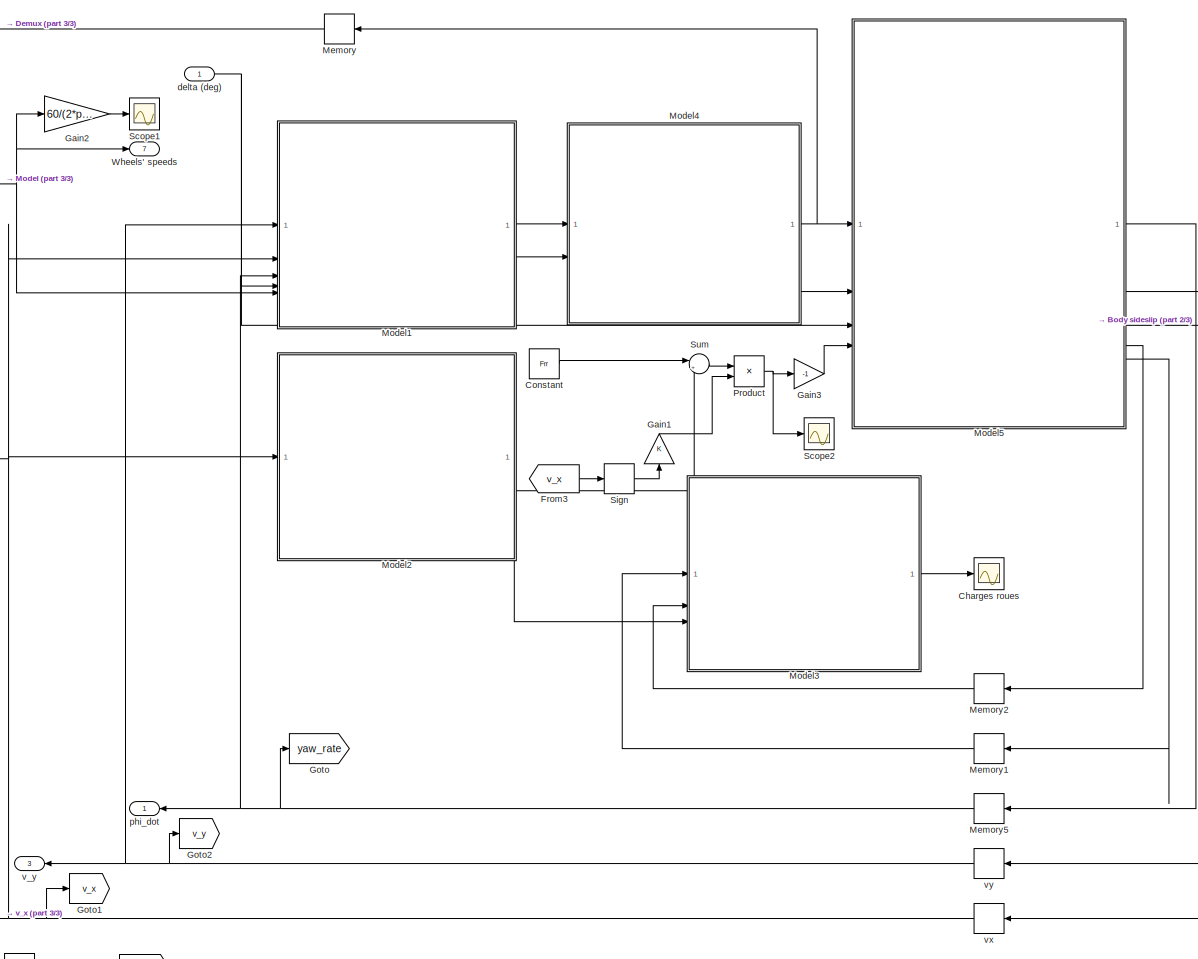
[diagram: root canvas - part 1/3, center side, full height]
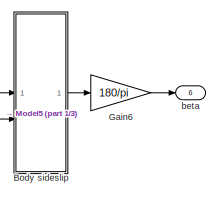
[diagram: root canvas - part 2/3, top right region]
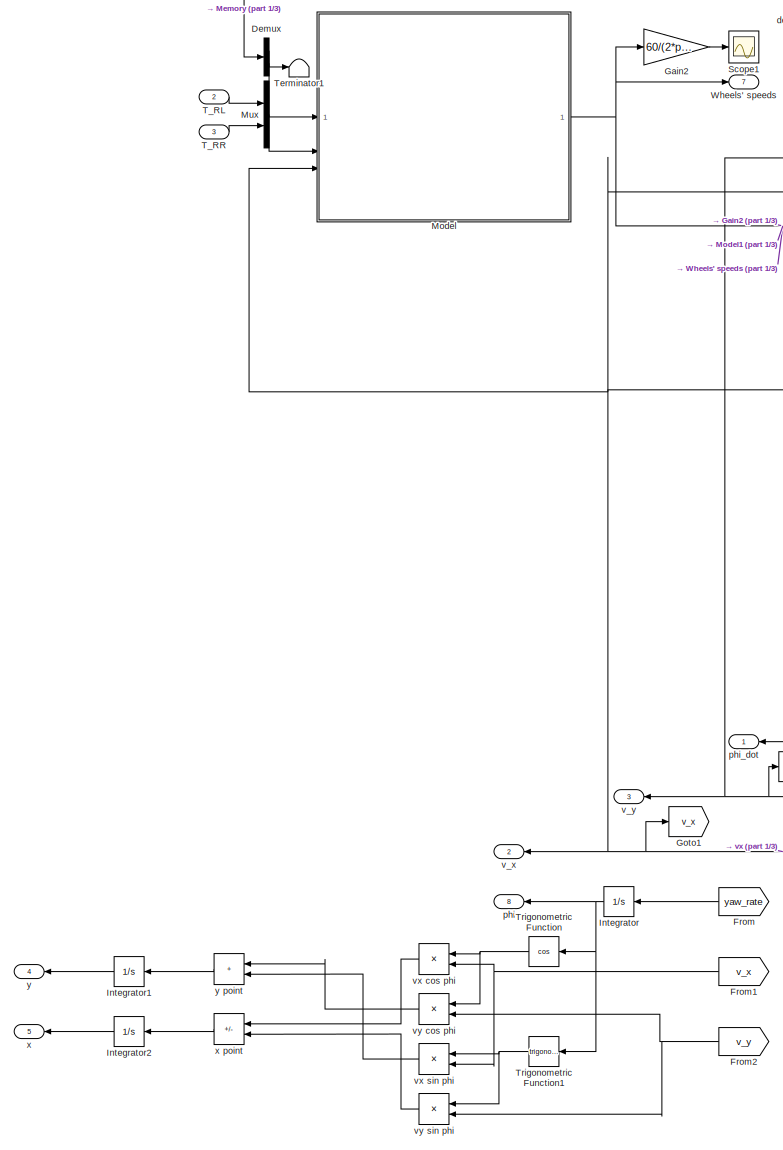
[diagram: root canvas - part 3/3, left side, full height]
MODEL slx_4a46903eb2ab
KIND model
CONFIG AbsTol = auto
CONFIG EnableMultiTasking = off
CONFIG FixedStep = Ts
CONFIG MaxStep = auto
CONFIG MinStep = auto
CONFIG RelTol = 1e-3
CONFIG SampleTimeConstraint = Unconstrained
CONFIG SolverName = FixedStepAuto
CONFIG StartTime = 0.0
CONFIG StopTime = 10
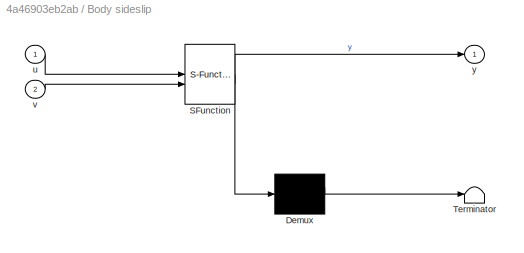
BLOCK [SubSystem] Body sideslip
  ErrorFcn = Stateflow.Translate.translate
  PermitHierarchicalResolution = ExplicitOnly
  SFBlockType = MATLAB Function
  TreatAsAtomicUnit = on
BLOCK [Demux] Body sideslip/ Demux 
  Outputs = 1
BLOCK [S-Function] Body sideslip/ SFunction 
  EnableBusSupport = on
  FunctionName = sf_sfun
  PortCounts = [2 2]
  SFcnIsStateOwnerBlock = off
  SFunctionDeploymentMode = off
  Tag = Stateflow S-Function 1
BLOCK [Terminator] Body sideslip/ Terminator 
BLOCK [Inport] Body sideslip/u
BLOCK [Inport] Body sideslip/v
  Port = 2
BLOCK [Outport] Body sideslip/y
BLOCK [Scope] Charges roues
  Floating = off
  NumInputPorts = 1
  ScopeSpecificationString = Simulink.scopes.TimeScopeBlockCfg('CurrentConfiguration', extmgr.ConfigurationSet(extmgr.Configuration('Core','General UI',true),extmgr.Configuration('Core','Source UI',true),extmgr.Configuration('Sources','WiredSimulink',true,'DataLoggingVariableName','ScopeData1'),extmgr.Configuration('Visuals','Time Domain',true,'SerializedDisplays',{struct('MinYLimReal','509.69081','MaxYLimReal','667.50919','Y...<+1503ch>
BLOCK [Constant] Constant
  Value = Frr
BLOCK [Demux] Demux
  NameLocation = top
  Outputs = 2
BLOCK [From] From
  GotoTag = yaw_rate
  NameLocation = top
BLOCK [From] From1
  GotoTag = v_x
  NameLocation = top
BLOCK [From] From2
  GotoTag = v_y
  NameLocation = top
BLOCK [From] From3
  GotoTag = v_x
BLOCK [Gain] Gain1
  NameLocation = right
BLOCK [Gain] Gain2
  Gain = 60/(2*pi)
BLOCK [Gain] Gain3
  Gain = -1
BLOCK [Gain] Gain6
  Gain = 180/pi
BLOCK [Goto] Goto
  GotoTag = yaw_rate
BLOCK [Goto] Goto1
  GotoTag = v_x
BLOCK [Goto] Goto2
  GotoTag = v_y
BLOCK [Integrator] Integrator
  NameLocation = top
BLOCK [Integrator] Integrator1
  NameLocation = top
BLOCK [Integrator] Integrator2
  NameLocation = top
BLOCK [Memory] Memory
  InitialCondition = [0 0 0 0]
  NameLocation = top
BLOCK [Memory] Memory1
  NameLocation = top
BLOCK [Memory] Memory2
  NameLocation = top
BLOCK [Memory] Memory5
  NameLocation = top
BLOCK [ModelReference] Model
  ModelNameDialog = calcul_vitesse_roues.slx
  ModelReferenceVersion = 1.22
  PortSchema = {"entries":[{"content":{"sides":[{"content":{"connectorIds":["In2","In1","In3"]},"type":"ConnectorPlacement.EquallySpacedRectSide","uuid":"32c61a1f-6c57-499a-b866-aceaf52d28d2"},{"content":{"connectorIds":["Out1"],"side":"RIGHT"},"type":"ConnectorPlacement.EquallySpacedRectSide","uuid":"cffac577-4d60-419d-9ad2-4916db655c57"},{"content":{"side":"TOP"},"type":"ConnectorPlacement.EquallySpacedRectSid...<+234ch>
BLOCK [ModelReference] Model1
  ModelNameDialog = calcul_SA_SR.slx
  ModelReferenceVersion = 1.28
  PortSchema = {"entries":[{"content":{"sides":[{"content":{"connectorIds":["In4","In5","In2","In1","In3"]},"type":"ConnectorPlacement.EquallySpacedRectSide","uuid":"04201970-b5ae-4970-bbc5-44410850cae5"},{"content":{"connectorIds":["Out1","Out2"],"side":"RIGHT"},"type":"ConnectorPlacement.EquallySpacedRectSide","uuid":"ab4d4869-684a-4026-8884-27d4e324b480"},{"content":{"side":"TOP"},"type":"ConnectorPlacement.E...<+253ch>
BLOCK [ModelReference] Model2
  ModelNameDialog = forces_aero.slx
  ModelReferenceVersion = 1.4
  PortSchema = {"entries":[{"content":{"sides":[{"content":{"connectorIds":["In1"]},"type":"ConnectorPlacement.EquallySpacedRectSide","uuid":"36e8b1bd-3fb4-4164-87a8-b8a924d0920e"},{"content":{"connectorIds":["Out2","Out1"],"side":"RIGHT"},"type":"ConnectorPlacement.EquallySpacedRectSide","uuid":"44b00b7a-cae6-466b-a7ba-191ad477ad1a"},{"content":{"side":"TOP"},"type":"ConnectorPlacement.EquallySpacedRectSide","u...<+229ch>
BLOCK [ModelReference] Model3
  ModelNameDialog = charges_pneus.slx
  ModelReferenceVersion = 1.18
  PortSchema = {"entries":[{"content":{"sides":[{"content":{"connectorIds":["In3","In1","In2"]},"type":"ConnectorPlacement.EquallySpacedRectSide","uuid":"32c61a1f-6c57-499a-b866-aceaf52d28d2"},{"content":{"connectorIds":["Out1"],"side":"RIGHT"},"type":"ConnectorPlacement.EquallySpacedRectSide","uuid":"cffac577-4d60-419d-9ad2-4916db655c57"},{"content":{"side":"TOP"},"type":"ConnectorPlacement.EquallySpacedRectSid...<+234ch>
BLOCK [ModelReference] Model4
  ModelNameDialog = pneumatiques.slx
  ModelReferenceVersion = 1.32
BLOCK [ModelReference] Model5
  ModelNameDialog = eq_mouvement.slx
  ModelReferenceVersion = 1.16
  PortSchema = {"entries":[{"content":{"sides":[{"content":{"connectorIds":["In3","In1","In2","In4"]},"type":"ConnectorPlacement.EquallySpacedRectSide","uuid":"7adc66df-ae88-4ff9-8d9d-989933ee26de"},{"content":{"connectorIds":["Out2","Out3","Out1","Out5","Out4"],"side":"RIGHT"},"type":"ConnectorPlacement.EquallySpacedRectSide","uuid":"fc5e31fc-1ddd-4d83-91f3-0c7f32150fd7"},{"content":{"side":"TOP"},"type":"Conne...<+268ch>
BLOCK [Mux] Mux
  DisplayOption = bar
  Inputs = 2
BLOCK [Product] Product
BLOCK [Scope] Scope1
  Floating = off
  NumInputPorts = 1
  ScopeSpecificationString = Simulink.scopes.TimeScopeBlockCfg('CurrentConfiguration', extmgr.ConfigurationSet(extmgr.Configuration('Core','General UI',true),extmgr.Configuration('Core','Source UI',true),extmgr.Configuration('Sources','WiredSimulink',true,'DataLoggingVariableName','ScopeData1'),extmgr.Configuration('Visuals','Time Domain',true,'SerializedDisplays',{struct('MinYLimReal','-5.32411','MaxYLimReal','47.1281','YLab...<+1653ch>
BLOCK [Scope] Scope2
  Floating = off
  NumInputPorts = 1
  ScopeSpecificationString = Simulink.scopes.TimeScopeBlockCfg('CurrentConfiguration', extmgr.ConfigurationSet(extmgr.Configuration('Core','General UI',true),extmgr.Configuration('Core','Source UI',true),extmgr.Configuration('Sources','WiredSimulink',true,'DataLoggingVariableName','ScopeData1'),extmgr.Configuration('Visuals','Time Domain',true,'SerializedDisplays',{struct('MinYLimReal','-0.34063','MaxYLimReal','2.22324','YLab...<+1617ch>
BLOCK [Signum] Sign
BLOCK [Sum] Sum
  Inputs = |++
BLOCK [Inport] T_RL
  Port = 2
BLOCK [Inport] T_RR
  Port = 3
BLOCK [Terminator] Terminator1
  NameLocation = top
BLOCK [Trigonometry] Trigonometric Function
  NameLocation = top
  Operator = cos
BLOCK [Trigonometry] Trigonometric Function1
  NameLocation = top
BLOCK [Outport] Wheels' speeds
  Port = 7
BLOCK [Outport] beta
  Port = 6
BLOCK [Inport] delta (deg)
BLOCK [Outport] phi
  NameLocation = top
  Port = 8
BLOCK [Outport] phi_dot
  NameLocation = top
BLOCK [Outport] v_x
  NameLocation = top
  Port = 2
BLOCK [Outport] v_y
  NameLocation = top
  Port = 3
BLOCK [Memory] vx
  InitialCondition = v0
  NameLocation = top
BLOCK [Product] vx cos phi
  NameLocation = top
BLOCK [Product] vx sin phi
  NameLocation = top
BLOCK [Memory] vy
  NameLocation = top
BLOCK [Product] vy cos phi
  NameLocation = top
BLOCK [Product] vy sin phi
  NameLocation = top
BLOCK [Outport] x
  NameLocation = top
  Port = 5
BLOCK [Sum] x point
  IconShape = rectangular
  Inputs = +-
  NameLocation = top
BLOCK [Outport] y
  NameLocation = top
  Port = 4
BLOCK [Sum] y point
  IconShape = rectangular
  NameLocation = top
LINE Body sideslip:1 -> Gain6:1
LINE Constant:1 -> Sum:1
LINE Demux:1 -> Model:2
LINE Demux:2 -> Terminator1:1
NET From1:1 -> vx cos phi:2, vx sin phi:2
NET From2:1 -> vy cos phi:2, vy sin phi:2
LINE From3:1 -> Sign:1
LINE From:1 -> Integrator:1
LINE Gain1:1 -> Product:2
LINE Gain2:1 -> Scope1:1
LINE Gain3:1 -> Model5:4
LINE Gain6:1 -> beta:1
LINE Integrator1:1 -> y:1
LINE Integrator2:1 -> x:1
NET Integrator:1 -> Trigonometric Function1:1, Trigonometric Function:1, phi:1
LINE Memory1:1 -> Model3:1
LINE Memory2:1 -> Model3:2
NET Memory5:1 -> Goto:1, Model1:3, phi_dot:1
LINE Memory:1 -> Demux:1
LINE Model1:1 -> Model4:1
LINE Model1:2 -> Model4:2
LINE Model2:1 -> Model3:3
LINE Model2:2 -> Sum:2
LINE Model3:1 -> Charges roues:1
NET Model4:1 -> Memory:1, Model5:1
LINE Model4:2 -> Model5:2
LINE Model5:1 -> Memory5:1
NET Model5:2 -> Body sideslip:1, vx:1
NET Model5:3 -> Body sideslip:2, vy:1
LINE Model5:4 -> Memory2:1
LINE Model5:5 -> Memory1:1
NET Model:1 -> Gain2:1, Model1:5, Wheels' speeds:1
LINE Mux:1 -> Model:1
NET Product:1 -> Gain3:1, Scope2:1
LINE Sign:1 -> Gain1:1
LINE Sum:1 -> Product:1
LINE T_RL:1 -> Mux:1
LINE T_RR:1 -> Mux:2
NET Trigonometric Function1:1 -> vx sin phi:1, vy sin phi:1
NET Trigonometric Function:1 -> vx cos phi:1, vy cos phi:1
NET delta (deg):1 -> Model1:4, Model5:3
LINE vx cos phi:1 -> x point:1
LINE vx sin phi:1 -> y point:2
NET vx:1 -> Goto1:1, Model1:2, Model2:1, Model:3, v_x:1
LINE vy cos phi:1 -> y point:1
LINE vy sin phi:1 -> x point:2
NET vy:1 -> Goto2:1, Model1:1, v_y:1
LINE x point:1 -> Integrator2:1
LINE y point:1 -> Integrator1:1
note: NET lines group one-source signal fan-out (src -> all destinations, sorted); 1:1 wires keep LINE
CHART Body sideslip states=1 transitions=1
  STATE_LABEL 'eML_blk_kernel()'
  STATE_LABEL 'SCRIPT:\nfunction y = fcn(u,v)\n\ny = atan(v/u);\nend\n'
CHART  states=0 transitions=0
